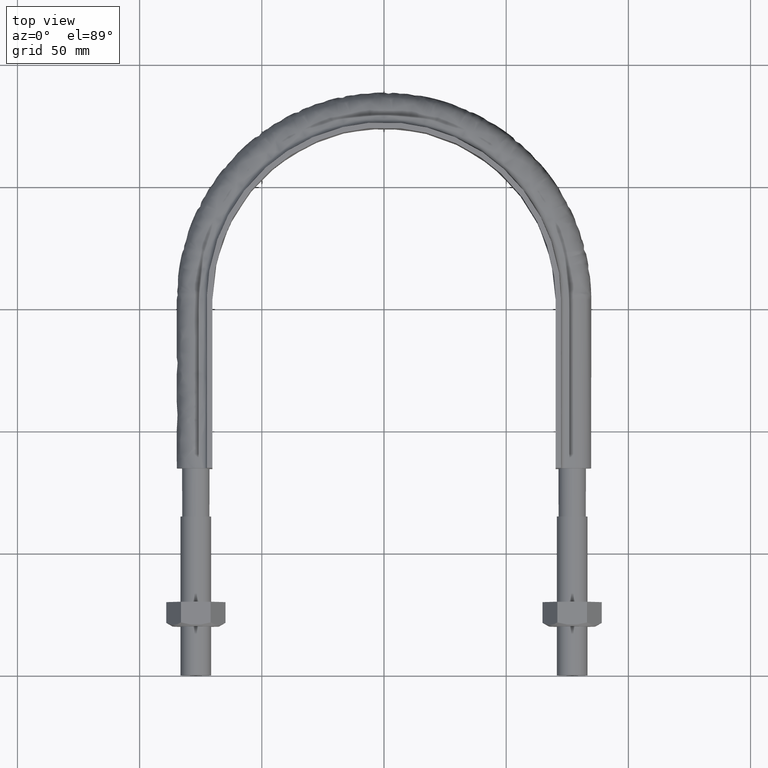
[diagram: clean part render]
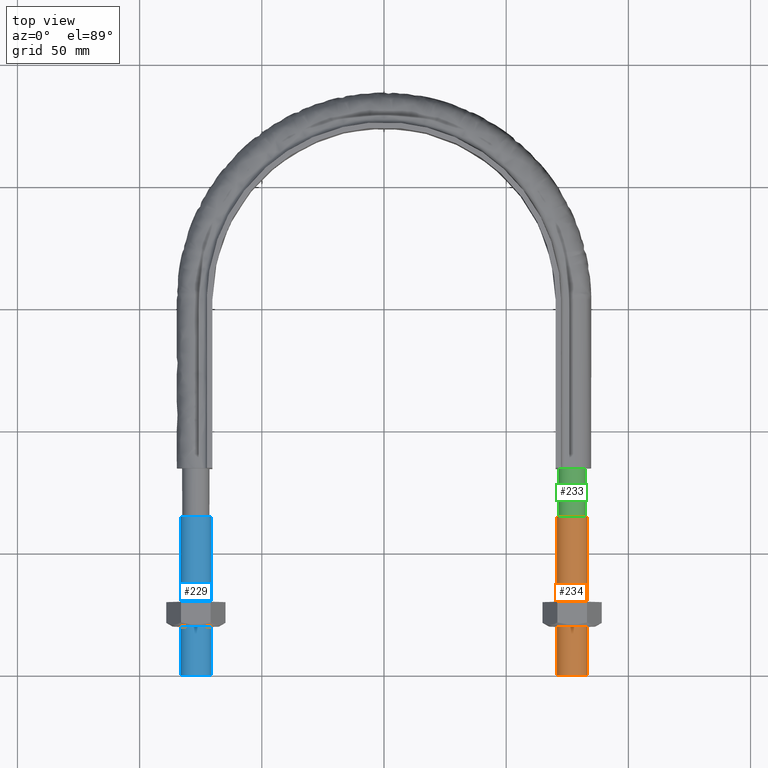
[diagram: same view with three faces highlighted in distinct colors, each labeled with its STEP entity id]
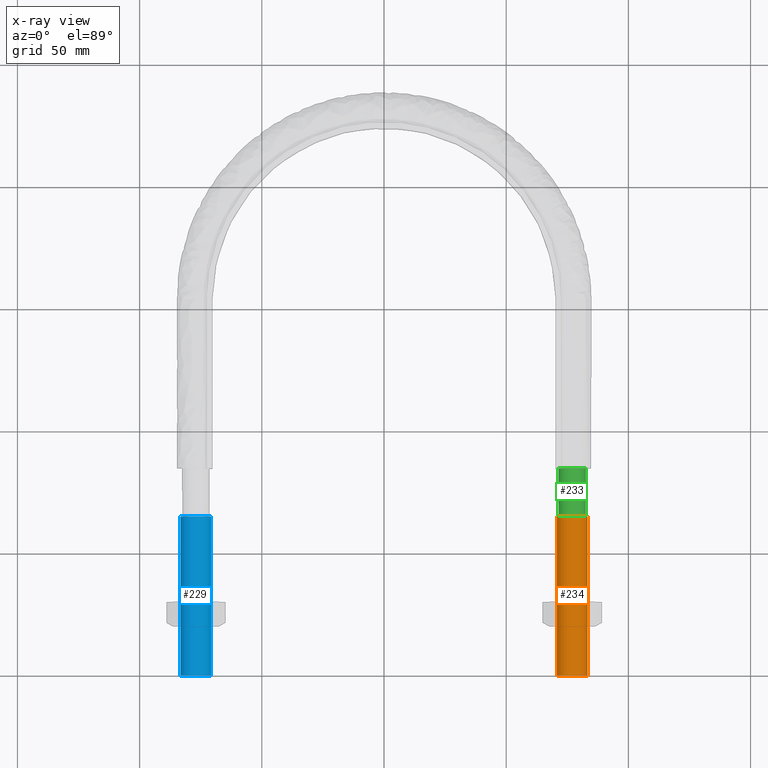
[diagram: x-ray of the same camera — body ghosted, the three highlighted faces saturated]
A machine part, top view with three faces highlighted in distinct colors.
The next image is the same camera in x-ray (body ghosted, the three faces saturated) — at least one of them is partly hidden behind the body in this view.
Their STEP definitions:

[orange] entity #234 — the highlighted cylindrical surface (bore or boss wall) has radius 6.25 mm, axis along (0, 1, -0).
#234 = ADVANCED_FACE( '', ( #299, #300 ), #301, .T. );
#299 = FACE_OUTER_BOUND( '', #1247, .T. );
#300 = FACE_OUTER_BOUND( '', #1248, .T. );
#301 = CYLINDRICAL_SURFACE( '', #1249, 6.25000000000001 );
#1247 = EDGE_LOOP( '', ( #1430 ) );
#1248 = EDGE_LOOP( '', ( #1431 ) );
#1249 = AXIS2_PLACEMENT_3D( '', #1432, #1433, #1434 );
#1430 = ORIENTED_EDGE( '', *, *, #1634, .T. );
#1431 = ORIENTED_EDGE( '', *, *, #1632, .F. );
#1432 = CARTESIAN_POINT( '', ( 77.0000000000000, 65.0000000000000, -1.98998532496136E-014 ) );
#1433 = DIRECTION( '', ( 2.44921270764476E-016, 1.00000000000000, -3.06151588455594E-016 ) );
#1434 = DIRECTION( '', ( 1.00000000000000, -2.44921270764475E-016, 0.000000000000000 ) );
#1632 = EDGE_CURVE( '', #1743, #1743, #1744, .T. );
#1634 = EDGE_CURVE( '', #1747, #1747, #1748, .T. );
#1743 = VERTEX_POINT( '', #2085 );
#1744 = CIRCLE( '', #2086, 6.25000000000001 );
#1747 = VERTEX_POINT( '', #2089 );
#1748 = CIRCLE( '', #2090, 6.25000000000001 );
#2085 = CARTESIAN_POINT( '', ( 83.2500000000000, -1.09602268667103E-014, 0.000000000000000 ) );
#2086 = AXIS2_PLACEMENT_3D( '', #2342, #2343, #2344 );
#2089 = CARTESIAN_POINT( '', ( 83.2500000000000, 65.0000000000000, -1.98998532496136E-014 ) );
#2090 = AXIS2_PLACEMENT_3D( '', #2348, #2349, #2350 );
#2342 = CARTESIAN_POINT( '', ( 77.0000000000000, -9.42946892443230E-015, 4.71701209382677E-046 ) );
#2343 = DIRECTION( '', ( -2.44921270764475E-016, -1.00000000000000, 3.06151588455594E-016 ) );
#2344 = DIRECTION( '', ( 1.00000000000000, -2.44921270764475E-016, -7.54721935012283E-047 ) );
#2348 = CARTESIAN_POINT( '', ( 77.0000000000000, 65.0000000000000, -1.98998532496136E-014 ) );
#2349 = DIRECTION( '', ( -2.44921270764475E-016, -1.00000000000000, 3.06151588455594E-016 ) );
#2350 = DIRECTION( '', ( 1.00000000000000, -2.44921270764475E-016, -7.54721935012283E-047 ) );

[blue] entity #229 — the highlighted cylindrical surface (bore or boss wall) has radius 6.25 mm, axis along (0, 1, -0).
#229 = ADVANCED_FACE( '', ( #285, #286 ), #287, .T. );
#285 = FACE_OUTER_BOUND( '', #1233, .T. );
#286 = FACE_OUTER_BOUND( '', #1234, .T. );
#287 = CYLINDRICAL_SURFACE( '', #1235, 6.25000000000001 );
#1233 = EDGE_LOOP( '', ( #1399 ) );
#1234 = EDGE_LOOP( '', ( #1400 ) );
#1235 = AXIS2_PLACEMENT_3D( '', #1401, #1402, #1403 );
#1399 = ORIENTED_EDGE( '', *, *, #1631, .T. );
#1400 = ORIENTED_EDGE( '', *, *, #1630, .F. );
#1401 = CARTESIAN_POINT( '', ( -77.0000000000000, 65.0000000000000, -1.98998532496136E-014 ) );
#1402 = DIRECTION( '', ( 2.44921270764476E-016, 1.00000000000000, -3.06151588455594E-016 ) );
#1403 = DIRECTION( '', ( 1.00000000000000, -2.44921270764475E-016, 0.000000000000000 ) );
#1630 = EDGE_CURVE( '', #1739, #1739, #1740, .T. );
#1631 = EDGE_CURVE( '', #1741, #1741, #1742, .T. );
#1739 = VERTEX_POINT( '', #2081 );
#1740 = CIRCLE( '', #2082, 6.25000000000001 );
#1741 = VERTEX_POINT( '', #2083 );
#1742 = CIRCLE( '', #2084, 6.25000000000001 );
#2081 = CARTESIAN_POINT( '', ( -70.7500000000000, 7.89871098215433E-015, 0.000000000000000 ) );
#2082 = AXIS2_PLACEMENT_3D( '', #2336, #2337, #2338 );
#2083 = CARTESIAN_POINT( '', ( -70.7500000000000, 65.0000000000000, -1.98998532496136E-014 ) );
#2084 = AXIS2_PLACEMENT_3D( '', #2339, #2340, #2341 );
#2336 = CARTESIAN_POINT( '', ( -77.0000000000000, 9.42946892443230E-015, -3.42113882891801E-046 ) );
#2337 = DIRECTION( '', ( -2.44921270764476E-016, -1.00000000000000, 3.06151588455594E-016 ) );
#2338 = DIRECTION( '', ( 1.00000000000000, -2.44921270764475E-016, 5.47382212626881E-047 ) );
#2339 = CARTESIAN_POINT( '', ( -77.0000000000000, 65.0000000000000, -1.98998532496136E-014 ) );
#2340 = DIRECTION( '', ( -2.44921270764476E-016, -1.00000000000000, 3.06151588455594E-016 ) );
#2341 = DIRECTION( '', ( 1.00000000000000, -2.44921270764475E-016, 5.47382212626881E-047 ) );

[green] entity #233 — the highlighted cylindrical surface (bore or boss wall) has radius 5.6 mm, axis along (0, 1, -0).
#233 = ADVANCED_FACE( '', ( #296, #297 ), #298, .T. );
#296 = FACE_OUTER_BOUND( '', #1244, .T. );
#297 = FACE_OUTER_BOUND( '', #1245, .T. );
#298 = CYLINDRICAL_SURFACE( '', #1246, 5.59999999999999 );
#1244 = EDGE_LOOP( '', ( #1418, #1419, #1420, #1421, #1422, #1423, #1424, #1425 ) );
#1245 = EDGE_LOOP( '', ( #1426 ) );
#1246 = AXIS2_PLACEMENT_3D( '', #1427, #1428, #1429 );
#1418 = ORIENTED_EDGE( '', *, *, #1625, .F. );
#1419 = ORIENTED_EDGE( '', *, *, #1624, .F. );
#1420 = ORIENTED_EDGE( '', *, *, #1623, .F. );
#1421 = ORIENTED_EDGE( '', *, *, #1622, .F. );
#1422 = ORIENTED_EDGE( '', *, *, #1629, .F. );
#1423 = ORIENTED_EDGE( '', *, *, #1628, .F. );
#1424 = ORIENTED_EDGE( '', *, *, #1627, .F. );
#1425 = ORIENTED_EDGE( '', *, *, #1626, .F. );
#1426 = ORIENTED_EDGE( '', *, *, #1633, .T. );
#1427 = CARTESIAN_POINT( '', ( 77.0000000000000, 84.7100000000000, -1.46064922852164E-014 ) );
#1428 = DIRECTION( '', ( 2.44921270764475E-016, 1.00000000000000, -3.06151588455594E-016 ) );
#1429 = DIRECTION( '', ( 1.00000000000000, -2.44921270764475E-016, 0.000000000000000 ) );
#1622 = EDGE_CURVE( '', #1723, #1724, #1725, .T. );
#1623 = EDGE_CURVE( '', #1724, #1726, #1727, .T. );
#1624 = EDGE_CURVE( '', #1726, #1728, #1729, .T. );
#1625 = EDGE_CURVE( '', #1728, #1730, #1731, .T. );
#1626 = EDGE_CURVE( '', #1730, #1732, #1733, .T. );
#1627 = EDGE_CURVE( '', #1732, #1734, #1735, .T. );
#1628 = EDGE_CURVE( '', #1734, #1736, #1737, .T. );
#1629 = EDGE_CURVE( '', #1736, #1723, #1738, .T. );
#1633 = EDGE_CURVE( '', #1745, #1745, #1746, .F. );
#1723 = VERTEX_POINT( '', #2041 );
#1724 = VERTEX_POINT( '', #2042 );
#1725 = B_SPLINE_CURVE_WITH_KNOTS( '', 3, ( #2043, #2044, #2045, #2046 ), .UNSPECIFIED., .F., .F., ( 4, 4 ), ( 0.000000000000000, 1.00000000000000 ), .UNSPECIFIED. );
#1726 = VERTEX_POINT( '', #2047 );
#1727 = B_SPLINE_CURVE_WITH_KNOTS( '', 3, ( #2048, #2049, #2050, #2051 ), .UNSPECIFIED., .F., .F., ( 4, 4 ), ( 0.000000000000000, 1.00000000000000 ), .UNSPECIFIED. );
#1728 = VERTEX_POINT( '', #2052 );
#1729 = B_SPLINE_CURVE_WITH_KNOTS( '', 3, ( #2053, #2054, #2055, #2056 ), .UNSPECIFIED., .F., .F., ( 4, 4 ), ( 0.000000000000000, 1.00000000000000 ), .UNSPECIFIED. );
#1730 = VERTEX_POINT( '', #2057 );
#1731 = B_SPLINE_CURVE_WITH_KNOTS( '', 3, ( #2058, #2059, #2060, #2061 ), .UNSPECIFIED., .F., .F., ( 4, 4 ), ( 0.000000000000000, 1.00000000000000 ), .UNSPECIFIED. );
#1732 = VERTEX_POINT( '', #2062 );
#1733 = B_SPLINE_CURVE_WITH_KNOTS( '', 3, ( #2063, #2064, #2065, #2066 ), .UNSPECIFIED., .F., .F., ( 4, 4 ), ( 0.000000000000000, 1.00000000000000 ), .UNSPECIFIED. );
#1734 = VERTEX_POINT( '', #2067 );
#1735 = B_SPLINE_CURVE_WITH_KNOTS( '', 3, ( #2068, #2069, #2070, #2071 ), .UNSPECIFIED., .F., .F., ( 4, 4 ), ( 0.000000000000000, 1.00000000000000 ), .UNSPECIFIED. );
#1736 = VERTEX_POINT( '', #2072 );
#1737 = B_SPLINE_CURVE_WITH_KNOTS( '', 3, ( #2073, #2074, #2075, #2076 ), .UNSPECIFIED., .F., .F., ( 4, 4 ), ( 0.000000000000000, 1.00000000000000 ), .UNSPECIFIED. );
#1738 = B_SPLINE_CURVE_WITH_KNOTS( '', 3, ( #2077, #2078, #2079, #2080 ), .UNSPECIFIED., .F., .F., ( 4, 4 ), ( 0.000000000000000, 1.00000000000000 ), .UNSPECIFIED. );
#1745 = VERTEX_POINT( '', #2087 );
#1746 = CIRCLE( '', #2088, 5.59999999999999 );
#2041 = CARTESIAN_POINT( '', ( 71.4000000000000, 84.7100000000000, -6.20949125533798E-014 ) );
#2042 = CARTESIAN_POINT( '', ( 73.0402020253557, 84.7100000000000, 3.95979797464497 ) );
#2043 = CARTESIAN_POINT( '', ( 71.4000000000000, 84.7100000000000, 3.25260651745651E-016 ) );
#2044 = CARTESIAN_POINT( '', ( 71.4000000000000, 84.7100000000000, 1.46274169980836 ) );
#2045 = CARTESIAN_POINT( '', ( 72.0058874503140, 84.7100000000000, 2.92548339961672 ) );
#2046 = CARTESIAN_POINT( '', ( 73.0402020253795, 84.7100000000000, 3.95979797466886 ) );
#2047 = CARTESIAN_POINT( '', ( 77.0000000000252, 84.7100000000000, 5.59999999999998 ) );
#2048 = CARTESIAN_POINT( '', ( 73.0402020253795, 84.7100000000000, 3.95979797466883 ) );
#2049 = CARTESIAN_POINT( '', ( 74.0745166004348, 84.7100000000000, 4.99411254971080 ) );
#2050 = CARTESIAN_POINT( '', ( 75.5372583002369, 84.7100000000000, 5.60000000000931 ) );
#2051 = CARTESIAN_POINT( '', ( 77.0000000000375, 84.7100000000000, 5.59999999999960 ) );
#2052 = CARTESIAN_POINT( '', ( 80.9597979746576, 84.7100000000000, 3.95979797463169 ) );
#2053 = CARTESIAN_POINT( '', ( 77.0000000000252, 84.7100000000000, 5.59999999999999 ) );
#2054 = CARTESIAN_POINT( '', ( 78.4627416998199, 84.7100000000000, 5.59999999999304 ) );
#2055 = CARTESIAN_POINT( '', ( 79.9254833996163, 84.7100000000000, 4.99411254968267 ) );
#2056 = CARTESIAN_POINT( '', ( 80.9597979746639, 84.7100000000000, 3.95979797462503 ) );
#2057 = CARTESIAN_POINT( '', ( 82.6000000000000, 84.7100000000000, -1.46064922852164E-014 ) );
#2058 = CARTESIAN_POINT( '', ( 80.9597979746576, 84.7100000000000, 3.95979797463170 ) );
#2059 = CARTESIAN_POINT( '', ( 81.9941125497048, 84.7100000000000, 2.92548339957741 ) );
#2060 = CARTESIAN_POINT( '', ( 82.6000000000063, 84.7100000000000, 1.46274169977570 ) );
#2061 = CARTESIAN_POINT( '', ( 82.5999999999998, 84.7100000000000, -2.47537315473830E-011 ) );
#2062 = CARTESIAN_POINT( '', ( 80.9597979746445, 84.7100000000000, -3.95979797464487 ) );
#2063 = CARTESIAN_POINT( '', ( 82.6000000000000, 84.7100000000000, -1.81345688641523E-011 ) );
#2064 = CARTESIAN_POINT( '', ( 82.5999999999950, 84.7100000000000, -1.46274169980914 ) );
#2065 = CARTESIAN_POINT( '', ( 81.9941125496898, 84.7100000000000, -2.92548339960139 ) );
#2066 = CARTESIAN_POINT( '', ( 80.9597979746397, 84.7100000000000, -3.95979797464935 ) );
#2067 = CARTESIAN_POINT( '', ( 76.9999999999999, 84.7100000000000, -5.60000000000001 ) );
#2068 = CARTESIAN_POINT( '', ( 80.9597979746445, 84.7100000000000, -3.95979797464487 ) );
#2069 = CARTESIAN_POINT( '', ( 79.9254833995937, 84.7100000000000, -4.99411254969551 ) );
#2070 = CARTESIAN_POINT( '', ( 78.4627416997968, 84.7100000000000, -5.60000000000003 ) );
#2071 = CARTESIAN_POINT( '', ( 76.9999999999998, 84.7100000000000, -5.59999999999999 ) );
#2072 = CARTESIAN_POINT( '', ( 73.0402020253626, 84.7100000000000, -3.95979797465190 ) );
#2073 = CARTESIAN_POINT( '', ( 77.0000000000000, 84.7100000000000, -5.59999999999999 ) );
#2074 = CARTESIAN_POINT( '', ( 75.5372583002064, 84.7100000000000, -5.59999999999997 ) );
#2075 = CARTESIAN_POINT( '', ( 74.0745166004129, 84.7100000000000, -4.99411254969822 ) );
#2076 = CARTESIAN_POINT( '', ( 73.0402020253626, 84.7100000000000, -3.95979797465187 ) );
#2077 = CARTESIAN_POINT( '', ( 73.0402020253626, 84.7100000000000, -3.95979797465189 ) );
#2078 = CARTESIAN_POINT( '', ( 72.0058874503074, 84.7100000000000, -2.92548339960071 ) );
#2079 = CARTESIAN_POINT( '', ( 71.4000000000007, 84.7100000000000, -1.46274169980206 ) );
#2080 = CARTESIAN_POINT( '', ( 71.3999999999999, 84.7100000000000, -3.69008209405441E-012 ) );
#2087 = CARTESIAN_POINT( '', ( 77.0000000000000, 65.0000000000000, 5.59999999999999 ) );
#2088 = AXIS2_PLACEMENT_3D( '', #2345, #2346, #2347 );
#2345 = CARTESIAN_POINT( '', ( 77.0000000000000, 65.0000000000000, -8.57224447675664E-015 ) );
#2346 = DIRECTION( '', ( -2.44921270764475E-016, -1.00000000000000, 3.06151588455594E-016 ) );
#2347 = DIRECTION( '', ( 3.74915180455534E-032, 3.06151588455594E-016, 1.00000000000000 ) );